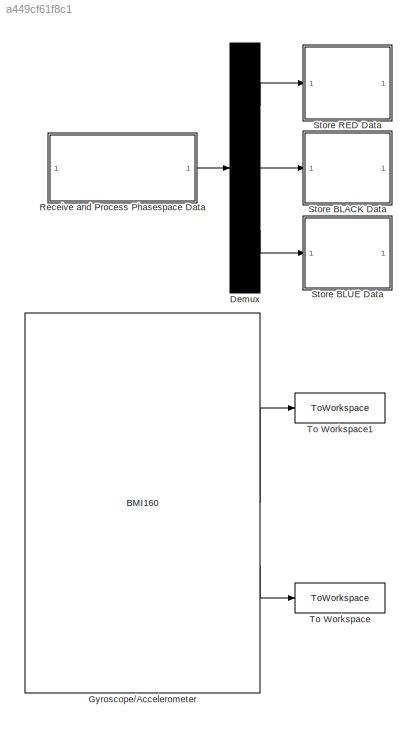
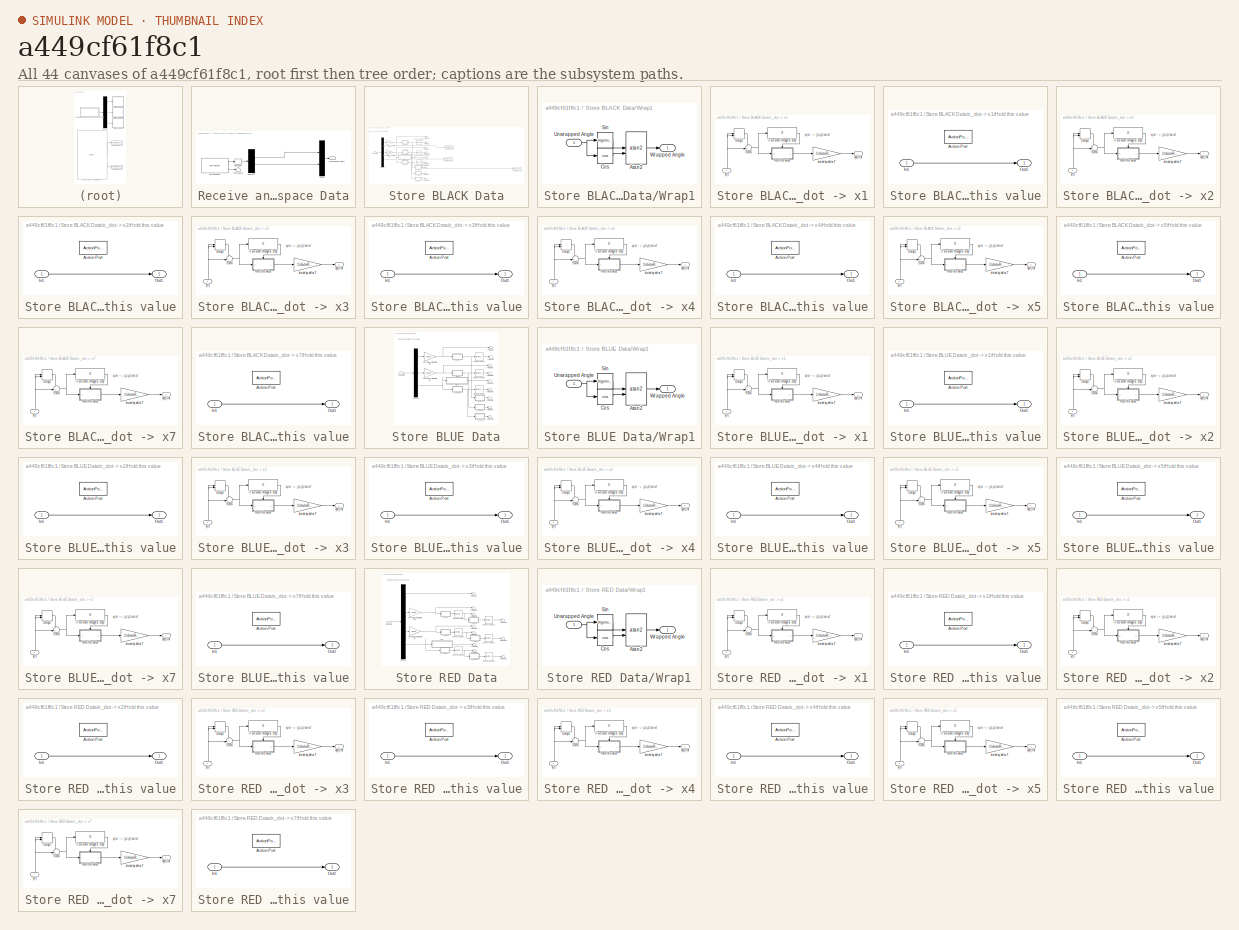
[diagram: thumbnail index - all 44 canvases of the model, root first then tree order]
MODEL slx_a449cf61f8c1
KIND model
CONFIG AbsTol = 1e-6
CONFIG EnableMultiTasking = off
CONFIG FixedStep = baseRate
CONFIG MaxStep = auto
CONFIG MinStep = auto
CONFIG RelTol = 1e-6
CONFIG SampleTimeConstraint = Unconstrained
CONFIG SolverName = ode4
CONFIG StartTime = 0.0
CONFIG StopTime = 3.514660000000000e+02
BLOCK [Demux] Demux
  Outputs = [4,3,3]
BLOCK [Reference] Gyroscope//Accelerometer  REF=nvidiaIMUSensorslib/BMI160
  SourceBlock = nvidiaIMUSensorslib/BMI160
  SourceType = nvidiacoder.sensors.BMI160Block
BLOCK [SubSystem] Receive and Process Phasespace Data
BLOCK [Demux] Receive and Process Phasespace Data/Demux2
  Outputs = [1,9]
BLOCK [Mux] Receive and Process Phasespace Data/Mux
  DisplayOption = bar
  Inputs = 2
BLOCK [Outport] Receive and Process Phasespace Data/PhaseSpace Data
BLOCK [Reshape] Receive and Process Phasespace Data/Reshape
  OutputDimensionality = Customize
  OutputDimensions = [10,1]
BLOCK [Terminator] Receive and Process Phasespace Data/Terminator
BLOCK [Reference] Receive and Process Phasespace Data/UDP Receive1  REF=nvidiaSharedBlocks/UDP Receive
  SourceBlock = nvidiaSharedBlocks/UDP Receive
  SourceType = UDP Receive
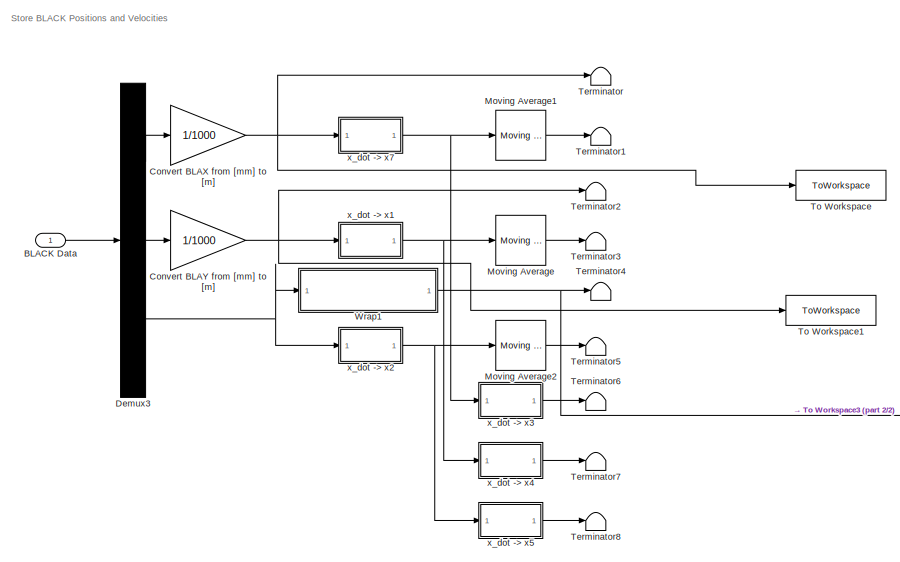
[diagram: Store BLACK Data - part 1/2, left side, full height]
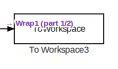
[diagram: Store BLACK Data - part 2/2, bottom right region]
BLOCK [SubSystem] Store BLACK Data
BLOCK [Inport] Store BLACK Data/BLACK Data
BLOCK [Gain] Store BLACK Data/Convert BLAX from [mm] to [m]
  Gain = 1/1000
BLOCK [Gain] Store BLACK Data/Convert BLAY from [mm] to [m]
  Gain = 1/1000
BLOCK [Demux] Store BLACK Data/Demux3
  Outputs = 3
BLOCK [Reference] Store BLACK Data/Moving Average  REF=dspstat3/Moving
Average
  SourceBlock = dspstat3/Moving\nAverage
  SourceType = dsp.simulink.MovingAverage
BLOCK [Reference] Store BLACK Data/Moving Average1  REF=dspstat3/Moving
Average
  SourceBlock = dspstat3/Moving\nAverage
  SourceType = dsp.simulink.MovingAverage
BLOCK [Reference] Store BLACK Data/Moving Average2  REF=dspstat3/Moving
Average
  SourceBlock = dspstat3/Moving\nAverage
  SourceType = dsp.simulink.MovingAverage
BLOCK [Terminator] Store BLACK Data/Terminator
BLOCK [Terminator] Store BLACK Data/Terminator1
BLOCK [Terminator] Store BLACK Data/Terminator2
BLOCK [Terminator] Store BLACK Data/Terminator3
BLOCK [Terminator] Store BLACK Data/Terminator4
BLOCK [Terminator] Store BLACK Data/Terminator5
BLOCK [Terminator] Store BLACK Data/Terminator6
BLOCK [Terminator] Store BLACK Data/Terminator7
BLOCK [Terminator] Store BLACK Data/Terminator8
BLOCK [ToWorkspace] Store BLACK Data/To Workspace
  FixptAsFi = on
  MaxDataPoints = inf
  SampleTime = -1
  Save2DSignal = 2-D array (concatenate along first dimension)
  VariableName = BLACKX
BLOCK [ToWorkspace] Store BLACK Data/To Workspace1
  FixptAsFi = on
  MaxDataPoints = inf
  SampleTime = -1
  Save2DSignal = 2-D array (concatenate along first dimension)
  VariableName = BLACKY
BLOCK [ToWorkspace] Store BLACK Data/To Workspace3
  FixptAsFi = on
  MaxDataPoints = inf
  SampleTime = -1
  Save2DSignal = 2-D array (concatenate along first dimension)
  VariableName = BLACKATT
BLOCK [SubSystem] Store BLACK Data/Wrap1
BLOCK [Trigonometry] Store BLACK Data/Wrap1/Atan2
  Operator = atan2
BLOCK [Trigonometry] Store BLACK Data/Wrap1/Cos
  Operator = cos
BLOCK [Trigonometry] Store BLACK Data/Wrap1/Sin
BLOCK [Inport] Store BLACK Data/Wrap1/Unwrapped Angle
BLOCK [Outport] Store BLACK Data/Wrap1/Wrapped Angle
BLOCK [SubSystem] Store BLACK Data/x_dot -> x1
BLOCK [Delay] Store BLACK Data/x_dot -> x1/Delay1
  DelayLength = 1
  InitialConditionSource = Input port
  InputPortMap = u0,p4
BLOCK [SubSystem] Store BLACK Data/x_dot -> x1/Hold this value
  TreatAsAtomicUnit = on
BLOCK [ActionPort] Store BLACK Data/x_dot -> x1/Hold this value/Action Port
  ActionPortLabel = if(u1 ~= 0)
BLOCK [Inport] Store BLACK Data/x_dot -> x1/Hold this value/In1
BLOCK [Outport] Store BLACK Data/x_dot -> x1/Hold this value/Out1
  VectorParamsAs1DForOutWhenUnconnected = off
BLOCK [Sum] Store BLACK Data/x_dot -> x1/Sum6
  Inputs = -+|
  NameLocation = top
BLOCK [Gain] Store BLACK Data/x_dot -> x1/divide by delta T
  Gain = 1/dataRate
BLOCK [Outport] Store BLACK Data/x_dot -> x1/dy(t)//dt
  VectorParamsAs1DForOutWhenUnconnected = off
BLOCK [If] Store BLACK Data/x_dot -> x1/if we went through a "step"
  IfExpression = u1 ~= 0
  ShowElse = off
BLOCK [Inport] Store BLACK Data/x_dot -> x1/y(t)
  NameLocation = right
BLOCK [SubSystem] Store BLACK Data/x_dot -> x2
BLOCK [Delay] Store BLACK Data/x_dot -> x2/Delay1
  DelayLength = 1
  InitialConditionSource = Input port
  InputPortMap = u0,p4
BLOCK [SubSystem] Store BLACK Data/x_dot -> x2/Hold this value
  TreatAsAtomicUnit = on
BLOCK [ActionPort] Store BLACK Data/x_dot -> x2/Hold this value/Action Port
  ActionPortLabel = if(u1 ~= 0)
BLOCK [Inport] Store BLACK Data/x_dot -> x2/Hold this value/In1
BLOCK [Outport] Store BLACK Data/x_dot -> x2/Hold this value/Out1
  VectorParamsAs1DForOutWhenUnconnected = off
BLOCK [Sum] Store BLACK Data/x_dot -> x2/Sum6
  Inputs = -+|
  NameLocation = top
BLOCK [Gain] Store BLACK Data/x_dot -> x2/divide by delta T
  Gain = 1/dataRate
BLOCK [Outport] Store BLACK Data/x_dot -> x2/dy(t)//dt
  VectorParamsAs1DForOutWhenUnconnected = off
BLOCK [If] Store BLACK Data/x_dot -> x2/if we went through a "step"
  IfExpression = u1 ~= 0
  ShowElse = off
BLOCK [Inport] Store BLACK Data/x_dot -> x2/y(t)
  NameLocation = right
BLOCK [SubSystem] Store BLACK Data/x_dot -> x3
BLOCK [Delay] Store BLACK Data/x_dot -> x3/Delay1
  DelayLength = 1
  InitialConditionSource = Input port
  InputPortMap = u0,p4
BLOCK [SubSystem] Store BLACK Data/x_dot -> x3/Hold this value
  TreatAsAtomicUnit = on
BLOCK [ActionPort] Store BLACK Data/x_dot -> x3/Hold this value/Action Port
  ActionPortLabel = if(u1 ~= 0)
BLOCK [Inport] Store BLACK Data/x_dot -> x3/Hold this value/In1
BLOCK [Outport] Store BLACK Data/x_dot -> x3/Hold this value/Out1
  VectorParamsAs1DForOutWhenUnconnected = off
BLOCK [Sum] Store BLACK Data/x_dot -> x3/Sum6
  Inputs = -+|
  NameLocation = top
BLOCK [Gain] Store BLACK Data/x_dot -> x3/divide by delta T
  Gain = 1/dataRate
BLOCK [Outport] Store BLACK Data/x_dot -> x3/dy(t)//dt
  VectorParamsAs1DForOutWhenUnconnected = off
BLOCK [If] Store BLACK Data/x_dot -> x3/if we went through a "step"
  IfExpression = u1 ~= 0
  ShowElse = off
BLOCK [Inport] Store BLACK Data/x_dot -> x3/y(t)
  NameLocation = right
BLOCK [SubSystem] Store BLACK Data/x_dot -> x4
BLOCK [Delay] Store BLACK Data/x_dot -> x4/Delay1
  DelayLength = 1
  InitialConditionSource = Input port
  InputPortMap = u0,p4
BLOCK [SubSystem] Store BLACK Data/x_dot -> x4/Hold this value
  TreatAsAtomicUnit = on
BLOCK [ActionPort] Store BLACK Data/x_dot -> x4/Hold this value/Action Port
  ActionPortLabel = if(u1 ~= 0)
BLOCK [Inport] Store BLACK Data/x_dot -> x4/Hold this value/In1
BLOCK [Outport] Store BLACK Data/x_dot -> x4/Hold this value/Out1
  VectorParamsAs1DForOutWhenUnconnected = off
BLOCK [Sum] Store BLACK Data/x_dot -> x4/Sum6
  Inputs = -+|
  NameLocation = top
BLOCK [Gain] Store BLACK Data/x_dot -> x4/divide by delta T
  Gain = 1/dataRate
BLOCK [Outport] Store BLACK Data/x_dot -> x4/dy(t)//dt
  VectorParamsAs1DForOutWhenUnconnected = off
BLOCK [If] Store BLACK Data/x_dot -> x4/if we went through a "step"
  IfExpression = u1 ~= 0
  ShowElse = off
BLOCK [Inport] Store BLACK Data/x_dot -> x4/y(t)
  NameLocation = right
BLOCK [SubSystem] Store BLACK Data/x_dot -> x5
BLOCK [Delay] Store BLACK Data/x_dot -> x5/Delay1
  DelayLength = 1
  InitialConditionSource = Input port
  InputPortMap = u0,p4
BLOCK [SubSystem] Store BLACK Data/x_dot -> x5/Hold this value
  TreatAsAtomicUnit = on
BLOCK [ActionPort] Store BLACK Data/x_dot -> x5/Hold this value/Action Port
  ActionPortLabel = if(u1 ~= 0)
BLOCK [Inport] Store BLACK Data/x_dot -> x5/Hold this value/In1
BLOCK [Outport] Store BLACK Data/x_dot -> x5/Hold this value/Out1
  VectorParamsAs1DForOutWhenUnconnected = off
BLOCK [Sum] Store BLACK Data/x_dot -> x5/Sum6
  Inputs = -+|
  NameLocation = top
BLOCK [Gain] Store BLACK Data/x_dot -> x5/divide by delta T
  Gain = 1/dataRate
BLOCK [Outport] Store BLACK Data/x_dot -> x5/dy(t)//dt
  VectorParamsAs1DForOutWhenUnconnected = off
BLOCK [If] Store BLACK Data/x_dot -> x5/if we went through a "step"
  IfExpression = u1 ~= 0
  ShowElse = off
BLOCK [Inport] Store BLACK Data/x_dot -> x5/y(t)
  NameLocation = right
BLOCK [SubSystem] Store BLACK Data/x_dot -> x7
BLOCK [Delay] Store BLACK Data/x_dot -> x7/Delay1
  DelayLength = 1
  InitialConditionSource = Input port
  InputPortMap = u0,p4
BLOCK [SubSystem] Store BLACK Data/x_dot -> x7/Hold this value
  TreatAsAtomicUnit = on
BLOCK [ActionPort] Store BLACK Data/x_dot -> x7/Hold this value/Action Port
  ActionPortLabel = if(u1 ~= 0)
BLOCK [Inport] Store BLACK Data/x_dot -> x7/Hold this value/In1
BLOCK [Outport] Store BLACK Data/x_dot -> x7/Hold this value/Out1
  VectorParamsAs1DForOutWhenUnconnected = off
BLOCK [Sum] Store BLACK Data/x_dot -> x7/Sum6
  Inputs = -+|
  NameLocation = top
BLOCK [Gain] Store BLACK Data/x_dot -> x7/divide by delta T
  Gain = 1/dataRate
BLOCK [Outport] Store BLACK Data/x_dot -> x7/dy(t)//dt
  VectorParamsAs1DForOutWhenUnconnected = off
BLOCK [If] Store BLACK Data/x_dot -> x7/if we went through a "step"
  IfExpression = u1 ~= 0
  ShowElse = off
BLOCK [Inport] Store BLACK Data/x_dot -> x7/y(t)
  NameLocation = right
BLOCK [SubSystem] Store BLUE Data
BLOCK [Inport] Store BLUE Data/BLUE Data
BLOCK [Gain] Store BLUE Data/Convert BLUX from [mm] to [m]
  Gain = 1/1000
BLOCK [Gain] Store BLUE Data/Convert BLUY from [mm] to [m]
  Gain = 1/1000
BLOCK [Demux] Store BLUE Data/Demux5
  Outputs = 3
BLOCK [Reference] Store BLUE Data/Moving Average  REF=dspstat3/Moving
Average
  SourceBlock = dspstat3/Moving\nAverage
  SourceType = dsp.simulink.MovingAverage
BLOCK [Reference] Store BLUE Data/Moving Average1  REF=dspstat3/Moving
Average
  SourceBlock = dspstat3/Moving\nAverage
  SourceType = dsp.simulink.MovingAverage
BLOCK [Reference] Store BLUE Data/Moving Average2  REF=dspstat3/Moving
Average
  SourceBlock = dspstat3/Moving\nAverage
  SourceType = dsp.simulink.MovingAverage
BLOCK [Terminator] Store BLUE Data/Terminator
BLOCK [Terminator] Store BLUE Data/Terminator1
BLOCK [Terminator] Store BLUE Data/Terminator2
BLOCK [Terminator] Store BLUE Data/Terminator3
BLOCK [Terminator] Store BLUE Data/Terminator4
BLOCK [Terminator] Store BLUE Data/Terminator5
BLOCK [Terminator] Store BLUE Data/Terminator6
BLOCK [Terminator] Store BLUE Data/Terminator7
BLOCK [Terminator] Store BLUE Data/Terminator8
BLOCK [SubSystem] Store BLUE Data/Wrap1
BLOCK [Trigonometry] Store BLUE Data/Wrap1/Atan2
  Operator = atan2
BLOCK [Trigonometry] Store BLUE Data/Wrap1/Cos
  Operator = cos
BLOCK [Trigonometry] Store BLUE Data/Wrap1/Sin
BLOCK [Inport] Store BLUE Data/Wrap1/Unwrapped Angle
BLOCK [Outport] Store BLUE Data/Wrap1/Wrapped Angle
BLOCK [SubSystem] Store BLUE Data/x_dot -> x1
BLOCK [Delay] Store BLUE Data/x_dot -> x1/Delay1
  DelayLength = 1
  InitialConditionSource = Input port
  InputPortMap = u0,p4
BLOCK [SubSystem] Store BLUE Data/x_dot -> x1/Hold this value
  TreatAsAtomicUnit = on
BLOCK [ActionPort] Store BLUE Data/x_dot -> x1/Hold this value/Action Port
  ActionPortLabel = if(u1 ~= 0)
BLOCK [Inport] Store BLUE Data/x_dot -> x1/Hold this value/In1
BLOCK [Outport] Store BLUE Data/x_dot -> x1/Hold this value/Out1
  VectorParamsAs1DForOutWhenUnconnected = off
BLOCK [Sum] Store BLUE Data/x_dot -> x1/Sum6
  Inputs = -+|
  NameLocation = top
BLOCK [Gain] Store BLUE Data/x_dot -> x1/divide by delta T
  Gain = 1/dataRate
BLOCK [Outport] Store BLUE Data/x_dot -> x1/dy(t)//dt
  VectorParamsAs1DForOutWhenUnconnected = off
BLOCK [If] Store BLUE Data/x_dot -> x1/if we went through a "step"
  IfExpression = u1 ~= 0
  ShowElse = off
BLOCK [Inport] Store BLUE Data/x_dot -> x1/y(t)
  NameLocation = right
BLOCK [SubSystem] Store BLUE Data/x_dot -> x2
BLOCK [Delay] Store BLUE Data/x_dot -> x2/Delay1
  DelayLength = 1
  InitialConditionSource = Input port
  InputPortMap = u0,p4
BLOCK [SubSystem] Store BLUE Data/x_dot -> x2/Hold this value
  TreatAsAtomicUnit = on
BLOCK [ActionPort] Store BLUE Data/x_dot -> x2/Hold this value/Action Port
  ActionPortLabel = if(u1 ~= 0)
BLOCK [Inport] Store BLUE Data/x_dot -> x2/Hold this value/In1
BLOCK [Outport] Store BLUE Data/x_dot -> x2/Hold this value/Out1
  VectorParamsAs1DForOutWhenUnconnected = off
BLOCK [Sum] Store BLUE Data/x_dot -> x2/Sum6
  Inputs = -+|
  NameLocation = top
BLOCK [Gain] Store BLUE Data/x_dot -> x2/divide by delta T
  Gain = 1/dataRate
BLOCK [Outport] Store BLUE Data/x_dot -> x2/dy(t)//dt
  VectorParamsAs1DForOutWhenUnconnected = off
BLOCK [If] Store BLUE Data/x_dot -> x2/if we went through a "step"
  IfExpression = u1 ~= 0
  ShowElse = off
BLOCK [Inport] Store BLUE Data/x_dot -> x2/y(t)
  NameLocation = right
BLOCK [SubSystem] Store BLUE Data/x_dot -> x3
BLOCK [Delay] Store BLUE Data/x_dot -> x3/Delay1
  DelayLength = 1
  InitialConditionSource = Input port
  InputPortMap = u0,p4
BLOCK [SubSystem] Store BLUE Data/x_dot -> x3/Hold this value
  TreatAsAtomicUnit = on
BLOCK [ActionPort] Store BLUE Data/x_dot -> x3/Hold this value/Action Port
  ActionPortLabel = if(u1 ~= 0)
BLOCK [Inport] Store BLUE Data/x_dot -> x3/Hold this value/In1
BLOCK [Outport] Store BLUE Data/x_dot -> x3/Hold this value/Out1
  VectorParamsAs1DForOutWhenUnconnected = off
BLOCK [Sum] Store BLUE Data/x_dot -> x3/Sum6
  Inputs = -+|
  NameLocation = top
BLOCK [Gain] Store BLUE Data/x_dot -> x3/divide by delta T
  Gain = 1/dataRate
BLOCK [Outport] Store BLUE Data/x_dot -> x3/dy(t)//dt
  VectorParamsAs1DForOutWhenUnconnected = off
BLOCK [If] Store BLUE Data/x_dot -> x3/if we went through a "step"
  IfExpression = u1 ~= 0
  ShowElse = off
BLOCK [Inport] Store BLUE Data/x_dot -> x3/y(t)
  NameLocation = right
BLOCK [SubSystem] Store BLUE Data/x_dot -> x4
BLOCK [Delay] Store BLUE Data/x_dot -> x4/Delay1
  DelayLength = 1
  InitialConditionSource = Input port
  InputPortMap = u0,p4
BLOCK [SubSystem] Store BLUE Data/x_dot -> x4/Hold this value
  TreatAsAtomicUnit = on
BLOCK [ActionPort] Store BLUE Data/x_dot -> x4/Hold this value/Action Port
  ActionPortLabel = if(u1 ~= 0)
BLOCK [Inport] Store BLUE Data/x_dot -> x4/Hold this value/In1
BLOCK [Outport] Store BLUE Data/x_dot -> x4/Hold this value/Out1
  VectorParamsAs1DForOutWhenUnconnected = off
BLOCK [Sum] Store BLUE Data/x_dot -> x4/Sum6
  Inputs = -+|
  NameLocation = top
BLOCK [Gain] Store BLUE Data/x_dot -> x4/divide by delta T
  Gain = 1/dataRate
BLOCK [Outport] Store BLUE Data/x_dot -> x4/dy(t)//dt
  VectorParamsAs1DForOutWhenUnconnected = off
BLOCK [If] Store BLUE Data/x_dot -> x4/if we went through a "step"
  IfExpression = u1 ~= 0
  ShowElse = off
BLOCK [Inport] Store BLUE Data/x_dot -> x4/y(t)
  NameLocation = right
BLOCK [SubSystem] Store BLUE Data/x_dot -> x5
BLOCK [Delay] Store BLUE Data/x_dot -> x5/Delay1
  DelayLength = 1
  InitialConditionSource = Input port
  InputPortMap = u0,p4
BLOCK [SubSystem] Store BLUE Data/x_dot -> x5/Hold this value
  TreatAsAtomicUnit = on
BLOCK [ActionPort] Store BLUE Data/x_dot -> x5/Hold this value/Action Port
  ActionPortLabel = if(u1 ~= 0)
BLOCK [Inport] Store BLUE Data/x_dot -> x5/Hold this value/In1
BLOCK [Outport] Store BLUE Data/x_dot -> x5/Hold this value/Out1
  VectorParamsAs1DForOutWhenUnconnected = off
BLOCK [Sum] Store BLUE Data/x_dot -> x5/Sum6
  Inputs = -+|
  NameLocation = top
BLOCK [Gain] Store BLUE Data/x_dot -> x5/divide by delta T
  Gain = 1/dataRate
BLOCK [Outport] Store BLUE Data/x_dot -> x5/dy(t)//dt
  VectorParamsAs1DForOutWhenUnconnected = off
BLOCK [If] Store BLUE Data/x_dot -> x5/if we went through a "step"
  IfExpression = u1 ~= 0
  ShowElse = off
BLOCK [Inport] Store BLUE Data/x_dot -> x5/y(t)
  NameLocation = right
BLOCK [SubSystem] Store BLUE Data/x_dot -> x7
BLOCK [Delay] Store BLUE Data/x_dot -> x7/Delay1
  DelayLength = 1
  InitialConditionSource = Input port
  InputPortMap = u0,p4
BLOCK [SubSystem] Store BLUE Data/x_dot -> x7/Hold this value
  TreatAsAtomicUnit = on
BLOCK [ActionPort] Store BLUE Data/x_dot -> x7/Hold this value/Action Port
  ActionPortLabel = if(u1 ~= 0)
BLOCK [Inport] Store BLUE Data/x_dot -> x7/Hold this value/In1
BLOCK [Outport] Store BLUE Data/x_dot -> x7/Hold this value/Out1
  VectorParamsAs1DForOutWhenUnconnected = off
BLOCK [Sum] Store BLUE Data/x_dot -> x7/Sum6
  Inputs = -+|
  NameLocation = top
BLOCK [Gain] Store BLUE Data/x_dot -> x7/divide by delta T
  Gain = 1/dataRate
BLOCK [Outport] Store BLUE Data/x_dot -> x7/dy(t)//dt
  VectorParamsAs1DForOutWhenUnconnected = off
BLOCK [If] Store BLUE Data/x_dot -> x7/if we went through a "step"
  IfExpression = u1 ~= 0
  ShowElse = off
BLOCK [Inport] Store BLUE Data/x_dot -> x7/y(t)
  NameLocation = right
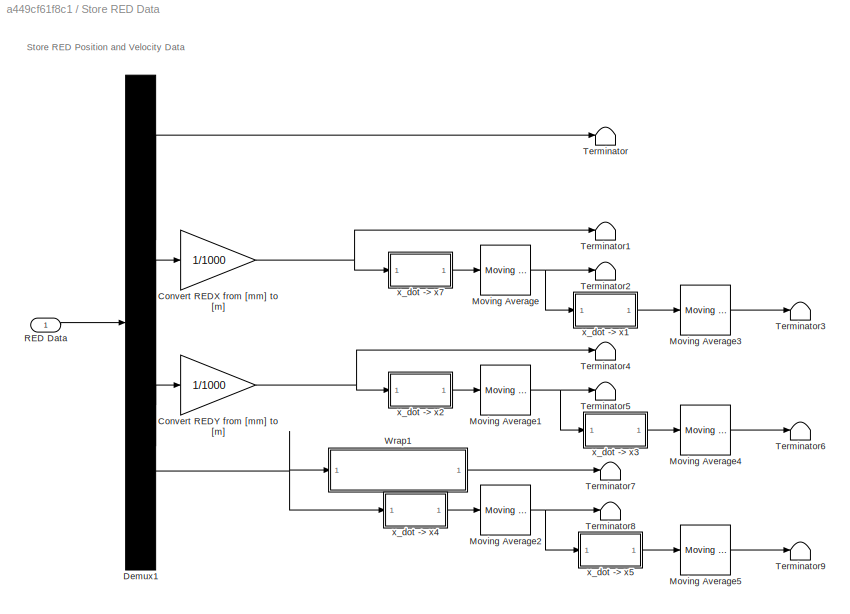
BLOCK [SubSystem] Store RED Data
BLOCK [Gain] Store RED Data/Convert REDX from [mm] to [m]
  Gain = 1/1000
BLOCK [Gain] Store RED Data/Convert REDY from [mm] to [m]
  Gain = 1/1000
BLOCK [Demux] Store RED Data/Demux1
BLOCK [Reference] Store RED Data/Moving Average  REF=dspstat3/Moving
Average
  SourceBlock = dspstat3/Moving\nAverage
  SourceType = dsp.simulink.MovingAverage
BLOCK [Reference] Store RED Data/Moving Average1  REF=dspstat3/Moving
Average
  SourceBlock = dspstat3/Moving\nAverage
  SourceType = dsp.simulink.MovingAverage
BLOCK [Reference] Store RED Data/Moving Average2  REF=dspstat3/Moving
Average
  SourceBlock = dspstat3/Moving\nAverage
  SourceType = dsp.simulink.MovingAverage
BLOCK [Reference] Store RED Data/Moving Average3  REF=dspstat3/Moving
Average
  SourceBlock = dspstat3/Moving\nAverage
  SourceType = dsp.simulink.MovingAverage
BLOCK [Reference] Store RED Data/Moving Average4  REF=dspstat3/Moving
Average
  SourceBlock = dspstat3/Moving\nAverage
  SourceType = dsp.simulink.MovingAverage
BLOCK [Reference] Store RED Data/Moving Average5  REF=dspstat3/Moving
Average
  SourceBlock = dspstat3/Moving\nAverage
  SourceType = dsp.simulink.MovingAverage
BLOCK [Inport] Store RED Data/RED Data
BLOCK [Terminator] Store RED Data/Terminator
BLOCK [Terminator] Store RED Data/Terminator1
BLOCK [Terminator] Store RED Data/Terminator2
BLOCK [Terminator] Store RED Data/Terminator3
BLOCK [Terminator] Store RED Data/Terminator4
BLOCK [Terminator] Store RED Data/Terminator5
BLOCK [Terminator] Store RED Data/Terminator6
BLOCK [Terminator] Store RED Data/Terminator7
BLOCK [Terminator] Store RED Data/Terminator8
BLOCK [Terminator] Store RED Data/Terminator9
BLOCK [SubSystem] Store RED Data/Wrap1
BLOCK [Trigonometry] Store RED Data/Wrap1/Atan2
  Operator = atan2
BLOCK [Trigonometry] Store RED Data/Wrap1/Cos
  Operator = cos
BLOCK [Trigonometry] Store RED Data/Wrap1/Sin
BLOCK [Inport] Store RED Data/Wrap1/Unwrapped Angle
BLOCK [Outport] Store RED Data/Wrap1/Wrapped Angle
BLOCK [SubSystem] Store RED Data/x_dot -> x1
BLOCK [Delay] Store RED Data/x_dot -> x1/Delay1
  DelayLength = 1
  InitialConditionSource = Input port
  InputPortMap = u0,p4
BLOCK [SubSystem] Store RED Data/x_dot -> x1/Hold this value
  TreatAsAtomicUnit = on
BLOCK [ActionPort] Store RED Data/x_dot -> x1/Hold this value/Action Port
  ActionPortLabel = if(u1 ~= 0)
BLOCK [Inport] Store RED Data/x_dot -> x1/Hold this value/In1
BLOCK [Outport] Store RED Data/x_dot -> x1/Hold this value/Out1
  VectorParamsAs1DForOutWhenUnconnected = off
BLOCK [Sum] Store RED Data/x_dot -> x1/Sum6
  Inputs = -+|
  NameLocation = top
BLOCK [Gain] Store RED Data/x_dot -> x1/divide by delta T
  Gain = 1/dataRate
BLOCK [Outport] Store RED Data/x_dot -> x1/dy(t)//dt
  VectorParamsAs1DForOutWhenUnconnected = off
BLOCK [If] Store RED Data/x_dot -> x1/if we went through a "step"
  IfExpression = u1 ~= 0
  ShowElse = off
BLOCK [Inport] Store RED Data/x_dot -> x1/y(t)
  NameLocation = right
BLOCK [SubSystem] Store RED Data/x_dot -> x2
BLOCK [Delay] Store RED Data/x_dot -> x2/Delay1
  DelayLength = 1
  InitialConditionSource = Input port
  InputPortMap = u0,p4
BLOCK [SubSystem] Store RED Data/x_dot -> x2/Hold this value
  TreatAsAtomicUnit = on
BLOCK [ActionPort] Store RED Data/x_dot -> x2/Hold this value/Action Port
  ActionPortLabel = if(u1 ~= 0)
BLOCK [Inport] Store RED Data/x_dot -> x2/Hold this value/In1
BLOCK [Outport] Store RED Data/x_dot -> x2/Hold this value/Out1
  VectorParamsAs1DForOutWhenUnconnected = off
BLOCK [Sum] Store RED Data/x_dot -> x2/Sum6
  Inputs = -+|
  NameLocation = top
BLOCK [Gain] Store RED Data/x_dot -> x2/divide by delta T
  Gain = 1/dataRate
BLOCK [Outport] Store RED Data/x_dot -> x2/dy(t)//dt
  VectorParamsAs1DForOutWhenUnconnected = off
BLOCK [If] Store RED Data/x_dot -> x2/if we went through a "step"
  IfExpression = u1 ~= 0
  ShowElse = off
BLOCK [Inport] Store RED Data/x_dot -> x2/y(t)
  NameLocation = right
BLOCK [SubSystem] Store RED Data/x_dot -> x3
BLOCK [Delay] Store RED Data/x_dot -> x3/Delay1
  DelayLength = 1
  InitialConditionSource = Input port
  InputPortMap = u0,p4
BLOCK [SubSystem] Store RED Data/x_dot -> x3/Hold this value
  TreatAsAtomicUnit = on
BLOCK [ActionPort] Store RED Data/x_dot -> x3/Hold this value/Action Port
  ActionPortLabel = if(u1 ~= 0)
BLOCK [Inport] Store RED Data/x_dot -> x3/Hold this value/In1
BLOCK [Outport] Store RED Data/x_dot -> x3/Hold this value/Out1
  VectorParamsAs1DForOutWhenUnconnected = off
BLOCK [Sum] Store RED Data/x_dot -> x3/Sum6
  Inputs = -+|
  NameLocation = top
BLOCK [Gain] Store RED Data/x_dot -> x3/divide by delta T
  Gain = 1/dataRate
BLOCK [Outport] Store RED Data/x_dot -> x3/dy(t)//dt
  VectorParamsAs1DForOutWhenUnconnected = off
BLOCK [If] Store RED Data/x_dot -> x3/if we went through a "step"
  IfExpression = u1 ~= 0
  ShowElse = off
BLOCK [Inport] Store RED Data/x_dot -> x3/y(t)
  NameLocation = right
BLOCK [SubSystem] Store RED Data/x_dot -> x4
BLOCK [Delay] Store RED Data/x_dot -> x4/Delay1
  DelayLength = 1
  InitialConditionSource = Input port
  InputPortMap = u0,p4
BLOCK [SubSystem] Store RED Data/x_dot -> x4/Hold this value
  TreatAsAtomicUnit = on
BLOCK [ActionPort] Store RED Data/x_dot -> x4/Hold this value/Action Port
  ActionPortLabel = if(u1 ~= 0)
BLOCK [Inport] Store RED Data/x_dot -> x4/Hold this value/In1
BLOCK [Outport] Store RED Data/x_dot -> x4/Hold this value/Out1
  VectorParamsAs1DForOutWhenUnconnected = off
BLOCK [Sum] Store RED Data/x_dot -> x4/Sum6
  Inputs = -+|
  NameLocation = top
BLOCK [Gain] Store RED Data/x_dot -> x4/divide by delta T
  Gain = 1/dataRate
BLOCK [Outport] Store RED Data/x_dot -> x4/dy(t)//dt
  VectorParamsAs1DForOutWhenUnconnected = off
BLOCK [If] Store RED Data/x_dot -> x4/if we went through a "step"
  IfExpression = u1 ~= 0
  ShowElse = off
BLOCK [Inport] Store RED Data/x_dot -> x4/y(t)
  NameLocation = right
BLOCK [SubSystem] Store RED Data/x_dot -> x5
BLOCK [Delay] Store RED Data/x_dot -> x5/Delay1
  DelayLength = 1
  InitialConditionSource = Input port
  InputPortMap = u0,p4
BLOCK [SubSystem] Store RED Data/x_dot -> x5/Hold this value
  TreatAsAtomicUnit = on
BLOCK [ActionPort] Store RED Data/x_dot -> x5/Hold this value/Action Port
  ActionPortLabel = if(u1 ~= 0)
BLOCK [Inport] Store RED Data/x_dot -> x5/Hold this value/In1
BLOCK [Outport] Store RED Data/x_dot -> x5/Hold this value/Out1
  VectorParamsAs1DForOutWhenUnconnected = off
BLOCK [Sum] Store RED Data/x_dot -> x5/Sum6
  Inputs = -+|
  NameLocation = top
BLOCK [Gain] Store RED Data/x_dot -> x5/divide by delta T
  Gain = 1/dataRate
BLOCK [Outport] Store RED Data/x_dot -> x5/dy(t)//dt
  VectorParamsAs1DForOutWhenUnconnected = off
BLOCK [If] Store RED Data/x_dot -> x5/if we went through a "step"
  IfExpression = u1 ~= 0
  ShowElse = off
BLOCK [Inport] Store RED Data/x_dot -> x5/y(t)
  NameLocation = right
BLOCK [SubSystem] Store RED Data/x_dot -> x7
BLOCK [Delay] Store RED Data/x_dot -> x7/Delay1
  DelayLength = 1
  InitialConditionSource = Input port
  InputPortMap = u0,p4
BLOCK [SubSystem] Store RED Data/x_dot -> x7/Hold this value
  TreatAsAtomicUnit = on
BLOCK [ActionPort] Store RED Data/x_dot -> x7/Hold this value/Action Port
  ActionPortLabel = if(u1 ~= 0)
BLOCK [Inport] Store RED Data/x_dot -> x7/Hold this value/In1
BLOCK [Outport] Store RED Data/x_dot -> x7/Hold this value/Out1
  VectorParamsAs1DForOutWhenUnconnected = off
BLOCK [Sum] Store RED Data/x_dot -> x7/Sum6
  Inputs = -+|
  NameLocation = top
BLOCK [Gain] Store RED Data/x_dot -> x7/divide by delta T
  Gain = 1/dataRate
BLOCK [Outport] Store RED Data/x_dot -> x7/dy(t)//dt
  VectorParamsAs1DForOutWhenUnconnected = off
BLOCK [If] Store RED Data/x_dot -> x7/if we went through a "step"
  IfExpression = u1 ~= 0
  ShowElse = off
BLOCK [Inport] Store RED Data/x_dot -> x7/y(t)
  NameLocation = right
BLOCK [ToWorkspace] To Workspace
  FixptAsFi = on
  MaxDataPoints = inf
  SampleTime = -1
  Save2DSignal = 2-D array (concatenate along first dimension)
  VariableName = AngularRate
BLOCK [ToWorkspace] To Workspace1
  FixptAsFi = on
  MaxDataPoints = inf
  SampleTime = -1
  Save2DSignal = 2-D array (concatenate along first dimension)
  VariableName = Acceleration
ANNOTATION Store BLACK Data: Store BLACK Positions and Velocities
ANNOTATION Store BLACK Data/x_dot -> x1: dy/dt ~= (y2-y1)/deltaT
ANNOTATION Store BLACK Data/x_dot -> x2: dy/dt ~= (y2-y1)/deltaT
ANNOTATION Store BLACK Data/x_dot -> x3: dy/dt ~= (y2-y1)/deltaT
ANNOTATION Store BLACK Data/x_dot -> x4: dy/dt ~= (y2-y1)/deltaT
ANNOTATION Store BLACK Data/x_dot -> x5: dy/dt ~= (y2-y1)/deltaT
ANNOTATION Store BLACK Data/x_dot -> x7: dy/dt ~= (y2-y1)/deltaT
ANNOTATION Store BLUE Data: Store BLUE Positions and Velocities
ANNOTATION Store BLUE Data/x_dot -> x1: dy/dt ~= (y2-y1)/deltaT
ANNOTATION Store BLUE Data/x_dot -> x2: dy/dt ~= (y2-y1)/deltaT
ANNOTATION Store BLUE Data/x_dot -> x3: dy/dt ~= (y2-y1)/deltaT
ANNOTATION Store BLUE Data/x_dot -> x4: dy/dt ~= (y2-y1)/deltaT
ANNOTATION Store BLUE Data/x_dot -> x5: dy/dt ~= (y2-y1)/deltaT
ANNOTATION Store BLUE Data/x_dot -> x7: dy/dt ~= (y2-y1)/deltaT
ANNOTATION Store RED Data: Store RED Position and Velocity Data
ANNOTATION Store RED Data/x_dot -> x1: dy/dt ~= (y2-y1)/deltaT
ANNOTATION Store RED Data/x_dot -> x2: dy/dt ~= (y2-y1)/deltaT
ANNOTATION Store RED Data/x_dot -> x3: dy/dt ~= (y2-y1)/deltaT
ANNOTATION Store RED Data/x_dot -> x4: dy/dt ~= (y2-y1)/deltaT
ANNOTATION Store RED Data/x_dot -> x5: dy/dt ~= (y2-y1)/deltaT
ANNOTATION Store RED Data/x_dot -> x7: dy/dt ~= (y2-y1)/deltaT
LINE Demux:1 -> Store RED Data:1
LINE Demux:2 -> Store BLACK Data:1
LINE Demux:3 -> Store BLUE Data:1
LINE Gyroscope//Accelerometer:1 -> To Workspace1:1
LINE Gyroscope//Accelerometer:2 -> To Workspace:1
LINE Receive and Process Phasespace Data/Demux2:1 -> Receive and Process Phasespace Data/Mux:1
LINE Receive and Process Phasespace Data/Demux2:2 -> Receive and Process Phasespace Data/Mux:2
LINE Receive and Process Phasespace Data/Mux:1 -> Receive and Process Phasespace Data/PhaseSpace Data:1
LINE Receive and Process Phasespace Data/Reshape:1 -> Receive and Process Phasespace Data/Demux2:1
LINE Receive and Process Phasespace Data/UDP Receive1:1 -> Receive and Process Phasespace Data/Reshape:1
LINE Receive and Process Phasespace Data/UDP Receive1:2 -> Receive and Process Phasespace Data/Terminator:1
LINE Receive and Process Phasespace Data:1 -> Demux:1
LINE Store BLACK Data/BLACK Data:1 -> Store BLACK Data/Demux3:1
NET Store BLACK Data/Convert BLAX from [mm] to [m]:1 -> Store BLACK Data/Terminator:1, Store BLACK Data/To Workspace:1, Store BLACK Data/x_dot -> x7:1
NET Store BLACK Data/Convert BLAY from [mm] to [m]:1 -> Store BLACK Data/Terminator2:1, Store BLACK Data/To Workspace1:1, Store BLACK Data/x_dot -> x1:1
LINE Store BLACK Data/Demux3:1 -> Store BLACK Data/Convert BLAX from [mm] to [m]:1
LINE Store BLACK Data/Demux3:2 -> Store BLACK Data/Convert BLAY from [mm] to [m]:1
NET Store BLACK Data/Demux3:3 -> Store BLACK Data/Wrap1:1, Store BLACK Data/x_dot -> x2:1
LINE Store BLACK Data/Moving Average1:1 -> Store BLACK Data/Terminator1:1
LINE Store BLACK Data/Moving Average2:1 -> Store BLACK Data/Terminator5:1
LINE Store BLACK Data/Moving Average:1 -> Store BLACK Data/Terminator3:1
LINE Store BLACK Data/Wrap1/Atan2:1 -> Store BLACK Data/Wrap1/Wrapped Angle:1
LINE Store BLACK Data/Wrap1/Cos:1 -> Store BLACK Data/Wrap1/Atan2:2
LINE Store BLACK Data/Wrap1/Sin:1 -> Store BLACK Data/Wrap1/Atan2:1
NET Store BLACK Data/Wrap1/Unwrapped Angle:1 -> Store BLACK Data/Wrap1/Cos:1, Store BLACK Data/Wrap1/Sin:1
NET Store BLACK Data/Wrap1:1 -> Store BLACK Data/Terminator4:1, Store BLACK Data/To Workspace3:1
LINE Store BLACK Data/x_dot -> x1/Delay1:1 -> Store BLACK Data/x_dot -> x1/Sum6:1
LINE Store BLACK Data/x_dot -> x1/Hold this value/In1:1 -> Store BLACK Data/x_dot -> x1/Hold this value/Out1:1
LINE Store BLACK Data/x_dot -> x1/Hold this value:1 -> Store BLACK Data/x_dot -> x1/divide by delta T:1
NET Store BLACK Data/x_dot -> x1/Sum6:1 -> Store BLACK Data/x_dot -> x1/Hold this value:1, Store BLACK Data/x_dot -> x1/if we went through a "step":1
LINE Store BLACK Data/x_dot -> x1/divide by delta T:1 -> Store BLACK Data/x_dot -> x1/dy(t)//dt:1
LINE Store BLACK Data/x_dot -> x1/if we went through a "step":1 -> Store BLACK Data/x_dot -> x1/Hold this value:ifaction
NET Store BLACK Data/x_dot -> x1/y(t):1 -> Store BLACK Data/x_dot -> x1/Delay1:1, Store BLACK Data/x_dot -> x1/Delay1:2, Store BLACK Data/x_dot -> x1/Sum6:2
NET Store BLACK Data/x_dot -> x1:1 -> Store BLACK Data/Moving Average:1, Store BLACK Data/x_dot -> x4:1
LINE Store BLACK Data/x_dot -> x2/Delay1:1 -> Store BLACK Data/x_dot -> x2/Sum6:1
LINE Store BLACK Data/x_dot -> x2/Hold this value/In1:1 -> Store BLACK Data/x_dot -> x2/Hold this value/Out1:1
LINE Store BLACK Data/x_dot -> x2/Hold this value:1 -> Store BLACK Data/x_dot -> x2/divide by delta T:1
NET Store BLACK Data/x_dot -> x2/Sum6:1 -> Store BLACK Data/x_dot -> x2/Hold this value:1, Store BLACK Data/x_dot -> x2/if we went through a "step":1
LINE Store BLACK Data/x_dot -> x2/divide by delta T:1 -> Store BLACK Data/x_dot -> x2/dy(t)//dt:1
LINE Store BLACK Data/x_dot -> x2/if we went through a "step":1 -> Store BLACK Data/x_dot -> x2/Hold this value:ifaction
NET Store BLACK Data/x_dot -> x2/y(t):1 -> Store BLACK Data/x_dot -> x2/Delay1:1, Store BLACK Data/x_dot -> x2/Delay1:2, Store BLACK Data/x_dot -> x2/Sum6:2
NET Store BLACK Data/x_dot -> x2:1 -> Store BLACK Data/Moving Average2:1, Store BLACK Data/x_dot -> x5:1
LINE Store BLACK Data/x_dot -> x3/Delay1:1 -> Store BLACK Data/x_dot -> x3/Sum6:1
LINE Store BLACK Data/x_dot -> x3/Hold this value/In1:1 -> Store BLACK Data/x_dot -> x3/Hold this value/Out1:1
LINE Store BLACK Data/x_dot -> x3/Hold this value:1 -> Store BLACK Data/x_dot -> x3/divide by delta T:1
NET Store BLACK Data/x_dot -> x3/Sum6:1 -> Store BLACK Data/x_dot -> x3/Hold this value:1, Store BLACK Data/x_dot -> x3/if we went through a "step":1
LINE Store BLACK Data/x_dot -> x3/divide by delta T:1 -> Store BLACK Data/x_dot -> x3/dy(t)//dt:1
LINE Store BLACK Data/x_dot -> x3/if we went through a "step":1 -> Store BLACK Data/x_dot -> x3/Hold this value:ifaction
NET Store BLACK Data/x_dot -> x3/y(t):1 -> Store BLACK Data/x_dot -> x3/Delay1:1, Store BLACK Data/x_dot -> x3/Delay1:2, Store BLACK Data/x_dot -> x3/Sum6:2
LINE Store BLACK Data/x_dot -> x3:1 -> Store BLACK Data/Terminator6:1
LINE Store BLACK Data/x_dot -> x4/Delay1:1 -> Store BLACK Data/x_dot -> x4/Sum6:1
LINE Store BLACK Data/x_dot -> x4/Hold this value/In1:1 -> Store BLACK Data/x_dot -> x4/Hold this value/Out1:1
LINE Store BLACK Data/x_dot -> x4/Hold this value:1 -> Store BLACK Data/x_dot -> x4/divide by delta T:1
NET Store BLACK Data/x_dot -> x4/Sum6:1 -> Store BLACK Data/x_dot -> x4/Hold this value:1, Store BLACK Data/x_dot -> x4/if we went through a "step":1
LINE Store BLACK Data/x_dot -> x4/divide by delta T:1 -> Store BLACK Data/x_dot -> x4/dy(t)//dt:1
LINE Store BLACK Data/x_dot -> x4/if we went through a "step":1 -> Store BLACK Data/x_dot -> x4/Hold this value:ifaction
NET Store BLACK Data/x_dot -> x4/y(t):1 -> Store BLACK Data/x_dot -> x4/Delay1:1, Store BLACK Data/x_dot -> x4/Delay1:2, Store BLACK Data/x_dot -> x4/Sum6:2
LINE Store BLACK Data/x_dot -> x4:1 -> Store BLACK Data/Terminator7:1
LINE Store BLACK Data/x_dot -> x5/Delay1:1 -> Store BLACK Data/x_dot -> x5/Sum6:1
LINE Store BLACK Data/x_dot -> x5/Hold this value/In1:1 -> Store BLACK Data/x_dot -> x5/Hold this value/Out1:1
LINE Store BLACK Data/x_dot -> x5/Hold this value:1 -> Store BLACK Data/x_dot -> x5/divide by delta T:1
NET Store BLACK Data/x_dot -> x5/Sum6:1 -> Store BLACK Data/x_dot -> x5/Hold this value:1, Store BLACK Data/x_dot -> x5/if we went through a "step":1
LINE Store BLACK Data/x_dot -> x5/divide by delta T:1 -> Store BLACK Data/x_dot -> x5/dy(t)//dt:1
LINE Store BLACK Data/x_dot -> x5/if we went through a "step":1 -> Store BLACK Data/x_dot -> x5/Hold this value:ifaction
NET Store BLACK Data/x_dot -> x5/y(t):1 -> Store BLACK Data/x_dot -> x5/Delay1:1, Store BLACK Data/x_dot -> x5/Delay1:2, Store BLACK Data/x_dot -> x5/Sum6:2
LINE Store BLACK Data/x_dot -> x5:1 -> Store BLACK Data/Terminator8:1
LINE Store BLACK Data/x_dot -> x7/Delay1:1 -> Store BLACK Data/x_dot -> x7/Sum6:1
LINE Store BLACK Data/x_dot -> x7/Hold this value/In1:1 -> Store BLACK Data/x_dot -> x7/Hold this value/Out1:1
LINE Store BLACK Data/x_dot -> x7/Hold this value:1 -> Store BLACK Data/x_dot -> x7/divide by delta T:1
NET Store BLACK Data/x_dot -> x7/Sum6:1 -> Store BLACK Data/x_dot -> x7/Hold this value:1, Store BLACK Data/x_dot -> x7/if we went through a "step":1
LINE Store BLACK Data/x_dot -> x7/divide by delta T:1 -> Store BLACK Data/x_dot -> x7/dy(t)//dt:1
LINE Store BLACK Data/x_dot -> x7/if we went through a "step":1 -> Store BLACK Data/x_dot -> x7/Hold this value:ifaction
NET Store BLACK Data/x_dot -> x7/y(t):1 -> Store BLACK Data/x_dot -> x7/Delay1:1, Store BLACK Data/x_dot -> x7/Delay1:2, Store BLACK Data/x_dot -> x7/Sum6:2
NET Store BLACK Data/x_dot -> x7:1 -> Store BLACK Data/Moving Average1:1, Store BLACK Data/x_dot -> x3:1
LINE Store BLUE Data/BLUE Data:1 -> Store BLUE Data/Demux5:1
NET Store BLUE Data/Convert BLUX from [mm] to [m]:1 -> Store BLUE Data/Terminator:1, Store BLUE Data/x_dot -> x7:1
NET Store BLUE Data/Convert BLUY from [mm] to [m]:1 -> Store BLUE Data/Terminator2:1, Store BLUE Data/x_dot -> x1:1
LINE Store BLUE Data/Demux5:1 -> Store BLUE Data/Convert BLUX from [mm] to [m]:1
LINE Store BLUE Data/Demux5:2 -> Store BLUE Data/Convert BLUY from [mm] to [m]:1
NET Store BLUE Data/Demux5:3 -> Store BLUE Data/Wrap1:1, Store BLUE Data/x_dot -> x2:1
LINE Store BLUE Data/Moving Average1:1 -> Store BLUE Data/Terminator3:1
LINE Store BLUE Data/Moving Average2:1 -> Store BLUE Data/Terminator5:1
LINE Store BLUE Data/Moving Average:1 -> Store BLUE Data/Terminator1:1
LINE Store BLUE Data/Wrap1/Atan2:1 -> Store BLUE Data/Wrap1/Wrapped Angle:1
LINE Store BLUE Data/Wrap1/Cos:1 -> Store BLUE Data/Wrap1/Atan2:2
LINE Store BLUE Data/Wrap1/Sin:1 -> Store BLUE Data/Wrap1/Atan2:1
NET Store BLUE Data/Wrap1/Unwrapped Angle:1 -> Store BLUE Data/Wrap1/Cos:1, Store BLUE Data/Wrap1/Sin:1
LINE Store BLUE Data/Wrap1:1 -> Store BLUE Data/Terminator4:1
LINE Store BLUE Data/x_dot -> x1/Delay1:1 -> Store BLUE Data/x_dot -> x1/Sum6:1
LINE Store BLUE Data/x_dot -> x1/Hold this value/In1:1 -> Store BLUE Data/x_dot -> x1/Hold this value/Out1:1
LINE Store BLUE Data/x_dot -> x1/Hold this value:1 -> Store BLUE Data/x_dot -> x1/divide by delta T:1
NET Store BLUE Data/x_dot -> x1/Sum6:1 -> Store BLUE Data/x_dot -> x1/Hold this value:1, Store BLUE Data/x_dot -> x1/if we went through a "step":1
LINE Store BLUE Data/x_dot -> x1/divide by delta T:1 -> Store BLUE Data/x_dot -> x1/dy(t)//dt:1
LINE Store BLUE Data/x_dot -> x1/if we went through a "step":1 -> Store BLUE Data/x_dot -> x1/Hold this value:ifaction
NET Store BLUE Data/x_dot -> x1/y(t):1 -> Store BLUE Data/x_dot -> x1/Delay1:1, Store BLUE Data/x_dot -> x1/Delay1:2, Store BLUE Data/x_dot -> x1/Sum6:2
NET Store BLUE Data/x_dot -> x1:1 -> Store BLUE Data/Moving Average1:1, Store BLUE Data/x_dot -> x4:1
LINE Store BLUE Data/x_dot -> x2/Delay1:1 -> Store BLUE Data/x_dot -> x2/Sum6:1
LINE Store BLUE Data/x_dot -> x2/Hold this value/In1:1 -> Store BLUE Data/x_dot -> x2/Hold this value/Out1:1
LINE Store BLUE Data/x_dot -> x2/Hold this value:1 -> Store BLUE Data/x_dot -> x2/divide by delta T:1
NET Store BLUE Data/x_dot -> x2/Sum6:1 -> Store BLUE Data/x_dot -> x2/Hold this value:1, Store BLUE Data/x_dot -> x2/if we went through a "step":1
LINE Store BLUE Data/x_dot -> x2/divide by delta T:1 -> Store BLUE Data/x_dot -> x2/dy(t)//dt:1
LINE Store BLUE Data/x_dot -> x2/if we went through a "step":1 -> Store BLUE Data/x_dot -> x2/Hold this value:ifaction
NET Store BLUE Data/x_dot -> x2/y(t):1 -> Store BLUE Data/x_dot -> x2/Delay1:1, Store BLUE Data/x_dot -> x2/Delay1:2, Store BLUE Data/x_dot -> x2/Sum6:2
NET Store BLUE Data/x_dot -> x2:1 -> Store BLUE Data/Moving Average2:1, Store BLUE Data/x_dot -> x5:1
LINE Store BLUE Data/x_dot -> x3/Delay1:1 -> Store BLUE Data/x_dot -> x3/Sum6:1
LINE Store BLUE Data/x_dot -> x3/Hold this value/In1:1 -> Store BLUE Data/x_dot -> x3/Hold this value/Out1:1
LINE Store BLUE Data/x_dot -> x3/Hold this value:1 -> Store BLUE Data/x_dot -> x3/divide by delta T:1
NET Store BLUE Data/x_dot -> x3/Sum6:1 -> Store BLUE Data/x_dot -> x3/Hold this value:1, Store BLUE Data/x_dot -> x3/if we went through a "step":1
LINE Store BLUE Data/x_dot -> x3/divide by delta T:1 -> Store BLUE Data/x_dot -> x3/dy(t)//dt:1
LINE Store BLUE Data/x_dot -> x3/if we went through a "step":1 -> Store BLUE Data/x_dot -> x3/Hold this value:ifaction
NET Store BLUE Data/x_dot -> x3/y(t):1 -> Store BLUE Data/x_dot -> x3/Delay1:1, Store BLUE Data/x_dot -> x3/Delay1:2, Store BLUE Data/x_dot -> x3/Sum6:2
LINE Store BLUE Data/x_dot -> x3:1 -> Store BLUE Data/Terminator6:1
LINE Store BLUE Data/x_dot -> x4/Delay1:1 -> Store BLUE Data/x_dot -> x4/Sum6:1
LINE Store BLUE Data/x_dot -> x4/Hold this value/In1:1 -> Store BLUE Data/x_dot -> x4/Hold this value/Out1:1
LINE Store BLUE Data/x_dot -> x4/Hold this value:1 -> Store BLUE Data/x_dot -> x4/divide by delta T:1
NET Store BLUE Data/x_dot -> x4/Sum6:1 -> Store BLUE Data/x_dot -> x4/Hold this value:1, Store BLUE Data/x_dot -> x4/if we went through a "step":1
LINE Store BLUE Data/x_dot -> x4/divide by delta T:1 -> Store BLUE Data/x_dot -> x4/dy(t)//dt:1
LINE Store BLUE Data/x_dot -> x4/if we went through a "step":1 -> Store BLUE Data/x_dot -> x4/Hold this value:ifaction
NET Store BLUE Data/x_dot -> x4/y(t):1 -> Store BLUE Data/x_dot -> x4/Delay1:1, Store BLUE Data/x_dot -> x4/Delay1:2, Store BLUE Data/x_dot -> x4/Sum6:2
LINE Store BLUE Data/x_dot -> x4:1 -> Store BLUE Data/Terminator7:1
LINE Store BLUE Data/x_dot -> x5/Delay1:1 -> Store BLUE Data/x_dot -> x5/Sum6:1
LINE Store BLUE Data/x_dot -> x5/Hold this value/In1:1 -> Store BLUE Data/x_dot -> x5/Hold this value/Out1:1
LINE Store BLUE Data/x_dot -> x5/Hold this value:1 -> Store BLUE Data/x_dot -> x5/divide by delta T:1
NET Store BLUE Data/x_dot -> x5/Sum6:1 -> Store BLUE Data/x_dot -> x5/Hold this value:1, Store BLUE Data/x_dot -> x5/if we went through a "step":1
LINE Store BLUE Data/x_dot -> x5/divide by delta T:1 -> Store BLUE Data/x_dot -> x5/dy(t)//dt:1
LINE Store BLUE Data/x_dot -> x5/if we went through a "step":1 -> Store BLUE Data/x_dot -> x5/Hold this value:ifaction
NET Store BLUE Data/x_dot -> x5/y(t):1 -> Store BLUE Data/x_dot -> x5/Delay1:1, Store BLUE Data/x_dot -> x5/Delay1:2, Store BLUE Data/x_dot -> x5/Sum6:2
LINE Store BLUE Data/x_dot -> x5:1 -> Store BLUE Data/Terminator8:1
LINE Store BLUE Data/x_dot -> x7/Delay1:1 -> Store BLUE Data/x_dot -> x7/Sum6:1
LINE Store BLUE Data/x_dot -> x7/Hold this value/In1:1 -> Store BLUE Data/x_dot -> x7/Hold this value/Out1:1
LINE Store BLUE Data/x_dot -> x7/Hold this value:1 -> Store BLUE Data/x_dot -> x7/divide by delta T:1
NET Store BLUE Data/x_dot -> x7/Sum6:1 -> Store BLUE Data/x_dot -> x7/Hold this value:1, Store BLUE Data/x_dot -> x7/if we went through a "step":1
LINE Store BLUE Data/x_dot -> x7/divide by delta T:1 -> Store BLUE Data/x_dot -> x7/dy(t)//dt:1
LINE Store BLUE Data/x_dot -> x7/if we went through a "step":1 -> Store BLUE Data/x_dot -> x7/Hold this value:ifaction
NET Store BLUE Data/x_dot -> x7/y(t):1 -> Store BLUE Data/x_dot -> x7/Delay1:1, Store BLUE Data/x_dot -> x7/Delay1:2, Store BLUE Data/x_dot -> x7/Sum6:2
NET Store BLUE Data/x_dot -> x7:1 -> Store BLUE Data/Moving Average:1, Store BLUE Data/x_dot -> x3:1
NET Store RED Data/Convert REDX from [mm] to [m]:1 -> Store RED Data/Terminator1:1, Store RED Data/x_dot -> x7:1
NET Store RED Data/Convert REDY from [mm] to [m]:1 -> Store RED Data/Terminator4:1, Store RED Data/x_dot -> x2:1
LINE Store RED Data/Demux1:1 -> Store RED Data/Terminator:1
LINE Store RED Data/Demux1:2 -> Store RED Data/Convert REDX from [mm] to [m]:1
LINE Store RED Data/Demux1:3 -> Store RED Data/Convert REDY from [mm] to [m]:1
NET Store RED Data/Demux1:4 -> Store RED Data/Wrap1:1, Store RED Data/x_dot -> x4:1
NET Store RED Data/Moving Average1:1 -> Store RED Data/Terminator5:1, Store RED Data/x_dot -> x3:1
NET Store RED Data/Moving Average2:1 -> Store RED Data/Terminator8:1, Store RED Data/x_dot -> x5:1
LINE Store RED Data/Moving Average3:1 -> Store RED Data/Terminator3:1
LINE Store RED Data/Moving Average4:1 -> Store RED Data/Terminator6:1
LINE Store RED Data/Moving Average5:1 -> Store RED Data/Terminator9:1
NET Store RED Data/Moving Average:1 -> Store RED Data/Terminator2:1, Store RED Data/x_dot -> x1:1
LINE Store RED Data/RED Data:1 -> Store RED Data/Demux1:1
LINE Store RED Data/Wrap1/Atan2:1 -> Store RED Data/Wrap1/Wrapped Angle:1
LINE Store RED Data/Wrap1/Cos:1 -> Store RED Data/Wrap1/Atan2:2
LINE Store RED Data/Wrap1/Sin:1 -> Store RED Data/Wrap1/Atan2:1
NET Store RED Data/Wrap1/Unwrapped Angle:1 -> Store RED Data/Wrap1/Cos:1, Store RED Data/Wrap1/Sin:1
LINE Store RED Data/Wrap1:1 -> Store RED Data/Terminator7:1
LINE Store RED Data/x_dot -> x1/Delay1:1 -> Store RED Data/x_dot -> x1/Sum6:1
LINE Store RED Data/x_dot -> x1/Hold this value/In1:1 -> Store RED Data/x_dot -> x1/Hold this value/Out1:1
LINE Store RED Data/x_dot -> x1/Hold this value:1 -> Store RED Data/x_dot -> x1/divide by delta T:1
NET Store RED Data/x_dot -> x1/Sum6:1 -> Store RED Data/x_dot -> x1/Hold this value:1, Store RED Data/x_dot -> x1/if we went through a "step":1
LINE Store RED Data/x_dot -> x1/divide by delta T:1 -> Store RED Data/x_dot -> x1/dy(t)//dt:1
LINE Store RED Data/x_dot -> x1/if we went through a "step":1 -> Store RED Data/x_dot -> x1/Hold this value:ifaction
NET Store RED Data/x_dot -> x1/y(t):1 -> Store RED Data/x_dot -> x1/Delay1:1, Store RED Data/x_dot -> x1/Delay1:2, Store RED Data/x_dot -> x1/Sum6:2
LINE Store RED Data/x_dot -> x1:1 -> Store RED Data/Moving Average3:1
LINE Store RED Data/x_dot -> x2/Delay1:1 -> Store RED Data/x_dot -> x2/Sum6:1
LINE Store RED Data/x_dot -> x2/Hold this value/In1:1 -> Store RED Data/x_dot -> x2/Hold this value/Out1:1
LINE Store RED Data/x_dot -> x2/Hold this value:1 -> Store RED Data/x_dot -> x2/divide by delta T:1
NET Store RED Data/x_dot -> x2/Sum6:1 -> Store RED Data/x_dot -> x2/Hold this value:1, Store RED Data/x_dot -> x2/if we went through a "step":1
LINE Store RED Data/x_dot -> x2/divide by delta T:1 -> Store RED Data/x_dot -> x2/dy(t)//dt:1
LINE Store RED Data/x_dot -> x2/if we went through a "step":1 -> Store RED Data/x_dot -> x2/Hold this value:ifaction
NET Store RED Data/x_dot -> x2/y(t):1 -> Store RED Data/x_dot -> x2/Delay1:1, Store RED Data/x_dot -> x2/Delay1:2, Store RED Data/x_dot -> x2/Sum6:2
LINE Store RED Data/x_dot -> x2:1 -> Store RED Data/Moving Average1:1
LINE Store RED Data/x_dot -> x3/Delay1:1 -> Store RED Data/x_dot -> x3/Sum6:1
LINE Store RED Data/x_dot -> x3/Hold this value/In1:1 -> Store RED Data/x_dot -> x3/Hold this value/Out1:1
LINE Store RED Data/x_dot -> x3/Hold this value:1 -> Store RED Data/x_dot -> x3/divide by delta T:1
NET Store RED Data/x_dot -> x3/Sum6:1 -> Store RED Data/x_dot -> x3/Hold this value:1, Store RED Data/x_dot -> x3/if we went through a "step":1
LINE Store RED Data/x_dot -> x3/divide by delta T:1 -> Store RED Data/x_dot -> x3/dy(t)//dt:1
LINE Store RED Data/x_dot -> x3/if we went through a "step":1 -> Store RED Data/x_dot -> x3/Hold this value:ifaction
NET Store RED Data/x_dot -> x3/y(t):1 -> Store RED Data/x_dot -> x3/Delay1:1, Store RED Data/x_dot -> x3/Delay1:2, Store RED Data/x_dot -> x3/Sum6:2
LINE Store RED Data/x_dot -> x3:1 -> Store RED Data/Moving Average4:1
LINE Store RED Data/x_dot -> x4/Delay1:1 -> Store RED Data/x_dot -> x4/Sum6:1
LINE Store RED Data/x_dot -> x4/Hold this value/In1:1 -> Store RED Data/x_dot -> x4/Hold this value/Out1:1
LINE Store RED Data/x_dot -> x4/Hold this value:1 -> Store RED Data/x_dot -> x4/divide by delta T:1
NET Store RED Data/x_dot -> x4/Sum6:1 -> Store RED Data/x_dot -> x4/Hold this value:1, Store RED Data/x_dot -> x4/if we went through a "step":1
LINE Store RED Data/x_dot -> x4/divide by delta T:1 -> Store RED Data/x_dot -> x4/dy(t)//dt:1
LINE Store RED Data/x_dot -> x4/if we went through a "step":1 -> Store RED Data/x_dot -> x4/Hold this value:ifaction
NET Store RED Data/x_dot -> x4/y(t):1 -> Store RED Data/x_dot -> x4/Delay1:1, Store RED Data/x_dot -> x4/Delay1:2, Store RED Data/x_dot -> x4/Sum6:2
LINE Store RED Data/x_dot -> x4:1 -> Store RED Data/Moving Average2:1
LINE Store RED Data/x_dot -> x5/Delay1:1 -> Store RED Data/x_dot -> x5/Sum6:1
LINE Store RED Data/x_dot -> x5/Hold this value/In1:1 -> Store RED Data/x_dot -> x5/Hold this value/Out1:1
LINE Store RED Data/x_dot -> x5/Hold this value:1 -> Store RED Data/x_dot -> x5/divide by delta T:1
NET Store RED Data/x_dot -> x5/Sum6:1 -> Store RED Data/x_dot -> x5/Hold this value:1, Store RED Data/x_dot -> x5/if we went through a "step":1
LINE Store RED Data/x_dot -> x5/divide by delta T:1 -> Store RED Data/x_dot -> x5/dy(t)//dt:1
LINE Store RED Data/x_dot -> x5/if we went through a "step":1 -> Store RED Data/x_dot -> x5/Hold this value:ifaction
NET Store RED Data/x_dot -> x5/y(t):1 -> Store RED Data/x_dot -> x5/Delay1:1, Store RED Data/x_dot -> x5/Delay1:2, Store RED Data/x_dot -> x5/Sum6:2
LINE Store RED Data/x_dot -> x5:1 -> Store RED Data/Moving Average5:1
LINE Store RED Data/x_dot -> x7/Delay1:1 -> Store RED Data/x_dot -> x7/Sum6:1
LINE Store RED Data/x_dot -> x7/Hold this value/In1:1 -> Store RED Data/x_dot -> x7/Hold this value/Out1:1
LINE Store RED Data/x_dot -> x7/Hold this value:1 -> Store RED Data/x_dot -> x7/divide by delta T:1
NET Store RED Data/x_dot -> x7/Sum6:1 -> Store RED Data/x_dot -> x7/Hold this value:1, Store RED Data/x_dot -> x7/if we went through a "step":1
LINE Store RED Data/x_dot -> x7/divide by delta T:1 -> Store RED Data/x_dot -> x7/dy(t)//dt:1
LINE Store RED Data/x_dot -> x7/if we went through a "step":1 -> Store RED Data/x_dot -> x7/Hold this value:ifaction
NET Store RED Data/x_dot -> x7/y(t):1 -> Store RED Data/x_dot -> x7/Delay1:1, Store RED Data/x_dot -> x7/Delay1:2, Store RED Data/x_dot -> x7/Sum6:2
LINE Store RED Data/x_dot -> x7:1 -> Store RED Data/Moving Average:1
note: NET lines group one-source signal fan-out (src -> all destinations, sorted); 1:1 wires keep LINE
